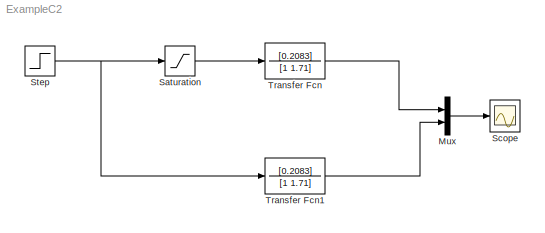
MODEL ExampleC2
KIND model
BLOCK [Mux] Mux
  DisplayOption = bar
  Inputs = 2
  Ports = [2, 1]
  SID = 2
BLOCK [Saturate] Saturation
  InputPortMap = u0
  LowerLimit = -5
  Ports = [1, 1]
  SID = 1
  UpperLimit = 5
BLOCK [Scope] Scope
  Ports = [1]
  SID = 6
  ScopeSpecificationString = Simulink.scopes.TimeScopeBlockCfg('CurrentConfiguration', extmgr.ConfigurationSet(extmgr.Configuration('Core','General UI',true),extmgr.Configuration('Core','Source UI',true),extmgr.Configuration('Sources','WiredSimulink',true),extmgr.Configuration('Visuals','Time Domain',true,'SerializedDisplays',{struct('MinYLimReal','-0.01523','MaxYLimReal','0.13704','YLabelReal','','MinYLimMag','0.00000','MaxY...<+1374ch>
BLOCK [Step] Step
  SID = 5
  SampleTime = 0
  Time = 0
BLOCK [TransferFcn] Transfer Fcn
  Denominator = [1 1.71]
  Numerator = [0.2083]
  SID = 3
BLOCK [TransferFcn] Transfer Fcn1
  Denominator = [1 1.71]
  Numerator = [0.2083]
  SID = 4
LINE Mux:1 -> Scope:1
LINE Saturation:1 -> Transfer Fcn:1
NET Step:1 -> Saturation:1, Transfer Fcn1:1
LINE Transfer Fcn1:1 -> Mux:2
LINE Transfer Fcn:1 -> Mux:1
note: NET lines group one-source signal fan-out (src -> all destinations, sorted); 1:1 wires keep LINE
